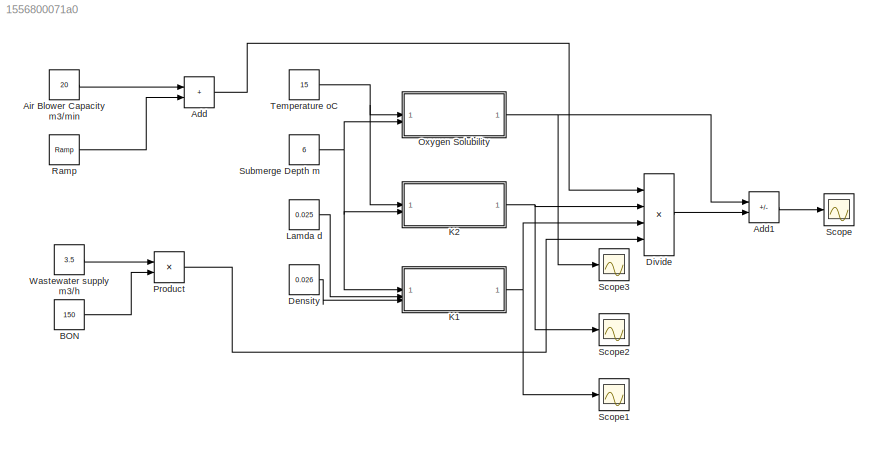
MODEL slx_1556800071a0
KIND model
CONFIG AbsTol = auto
CONFIG EnableMultiTasking = off
CONFIG FixedStep = auto
CONFIG MaxStep = auto
CONFIG MinStep = auto
CONFIG RelTol = 1e-3
CONFIG SampleTimeConstraint = Unconstrained
CONFIG SolverName = VariableStepAuto
CONFIG StartTime = 0.0
CONFIG StopTime = 100.0
BLOCK [Sum] Add
  IconShape = rectangular
BLOCK [Sum] Add1
  IconShape = rectangular
  Inputs = +-
BLOCK [Constant] Air Blower Capacity m3//min
  Value = 20
BLOCK [Constant] BON
  Value = 150
BLOCK [Constant] Density
  Value = 0.026
BLOCK [Product] Divide
  Inputs = //**
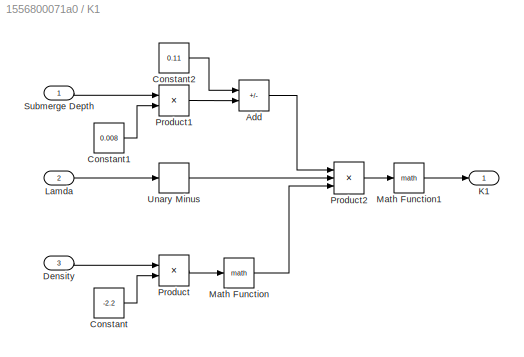
BLOCK [SubSystem] K1
BLOCK [Sum] K1/Add
  IconShape = rectangular
  Inputs = +-
BLOCK [Constant] K1/Constant
  Value = -2.2
BLOCK [Constant] K1/Constant1
  Value = 0.008
BLOCK [Constant] K1/Constant2
  Value = 0.11
BLOCK [Inport] K1/Density
  Port = 3
BLOCK [Outport] K1/K1
BLOCK [Inport] K1/Lamda
  Port = 2
BLOCK [Math] K1/Math Function
BLOCK [Math] K1/Math Function1
BLOCK [Product] K1/Product
BLOCK [Product] K1/Product1
BLOCK [Product] K1/Product2
  Inputs = 3
BLOCK [Inport] K1/Submerge Depth
BLOCK [UnaryMinus] K1/Unary Minus
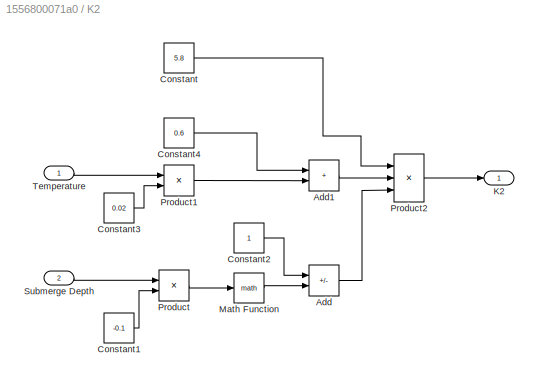
BLOCK [SubSystem] K2
BLOCK [Sum] K2/Add
  IconShape = rectangular
  Inputs = +-
BLOCK [Sum] K2/Add1
  IconShape = rectangular
BLOCK [Constant] K2/Constant
  Value = 5.8
BLOCK [Constant] K2/Constant1
  Value = -0.1
BLOCK [Constant] K2/Constant2
BLOCK [Constant] K2/Constant3
  Value = 0.02
BLOCK [Constant] K2/Constant4
  Value = 0.6
BLOCK [Outport] K2/K2
BLOCK [Math] K2/Math Function
BLOCK [Product] K2/Product
BLOCK [Product] K2/Product1
BLOCK [Product] K2/Product2
  Inputs = 3
BLOCK [Inport] K2/Submerge Depth
  Port = 2
BLOCK [Inport] K2/Temperature
BLOCK [Constant] Lamda d
  Value = 0.025
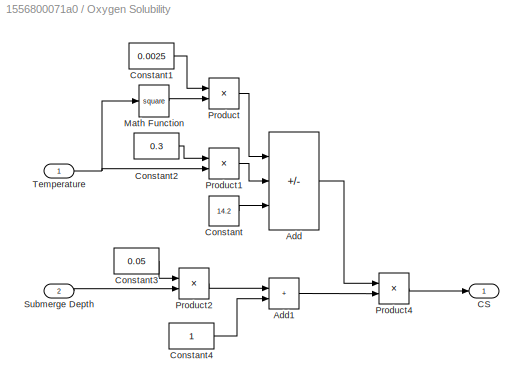
BLOCK [SubSystem] Oxygen Solubility
BLOCK [Sum] Oxygen Solubility/Add
  IconShape = rectangular
  Inputs = +-+
BLOCK [Sum] Oxygen Solubility/Add1
  IconShape = rectangular
BLOCK [Outport] Oxygen Solubility/CS
BLOCK [Constant] Oxygen Solubility/Constant
  Value = 14.2
BLOCK [Constant] Oxygen Solubility/Constant1
  Value = 0.0025
BLOCK [Constant] Oxygen Solubility/Constant2
  Value = 0.3
BLOCK [Constant] Oxygen Solubility/Constant3
  Value = 0.05
BLOCK [Constant] Oxygen Solubility/Constant4
BLOCK [Math] Oxygen Solubility/Math Function
  Operator = square
BLOCK [Product] Oxygen Solubility/Product
BLOCK [Product] Oxygen Solubility/Product1
BLOCK [Product] Oxygen Solubility/Product2
BLOCK [Product] Oxygen Solubility/Product4
BLOCK [Inport] Oxygen Solubility/Submerge Depth
  Port = 2
BLOCK [Inport] Oxygen Solubility/Temperature
BLOCK [Product] Product
BLOCK [Reference] Ramp  REF=simulink/Sources/Ramp
  SourceBlock = simulink/Sources/Ramp
  SourceType = Ramp
BLOCK [Scope] Scope
  Floating = off
  NumInputPorts = 1
  ScopeSpecificationString = Simulink.scopes.TimeScopeBlockCfg('CurrentConfiguration', extmgr.ConfigurationSet(extmgr.Configuration('Core','General UI',true),extmgr.Configuration('Core','Source UI',true),extmgr.Configuration('Sources','WiredSimulink',true),extmgr.Configuration('Visuals','Time Domain',true,'SerializedDisplays',{struct('MinYLimReal','0.94733','MaxYLimReal','13.59419','YLabelReal','','MinYLimMag','0.94733','MaxY...<+1484ch>
BLOCK [Scope] Scope1
  Floating = off
  NumInputPorts = 1
  ScopeSpecificationString = Simulink.scopes.TimeScopeBlockCfg('CurrentConfiguration', extmgr.ConfigurationSet(extmgr.Configuration('Core','General UI',true),extmgr.Configuration('Core','Source UI',true),extmgr.Configuration('Sources','WiredSimulink',true,'DataLoggingVariableName','ScopeData1'),extmgr.Configuration('Visuals','Time Domain',true,'SerializedDisplays',{struct('MinYLimReal','0.89854','MaxYLimReal','1.09854','YLabe...<+1526ch>
BLOCK [Scope] Scope2
  Floating = off
  NumInputPorts = 1
  ScopeSpecificationString = Simulink.scopes.TimeScopeBlockCfg('CurrentConfiguration', extmgr.ConfigurationSet(extmgr.Configuration('Core','General UI',true),extmgr.Configuration('Core','Source UI',true),extmgr.Configuration('Sources','WiredSimulink',true,'DataLoggingVariableName','ScopeData2'),extmgr.Configuration('Visuals','Time Domain',true,'SerializedDisplays',{struct('MinYLimReal','1.3552','MaxYLimReal','3.3552','YLabelR...<+1518ch>
BLOCK [Scope] Scope3
  Floating = off
  NumInputPorts = 1
  ScopeSpecificationString = Simulink.scopes.TimeScopeBlockCfg('CurrentConfiguration', extmgr.ConfigurationSet(extmgr.Configuration('Core','General UI',true),extmgr.Configuration('Core','Source UI',true),extmgr.Configuration('Sources','WiredSimulink',true,'DataLoggingVariableName','ScopeData3'),extmgr.Configuration('Visuals','Time Domain',true,'SerializedDisplays',{struct('MinYLimReal','3.34125','MaxYLimReal','23.34125','YLab...<+1545ch>
BLOCK [Constant] Submerge Depth m
  Value = 6
BLOCK [Constant] Temperature oC
  Value = 15
BLOCK [Constant] Wastewater supply m3//h
  Value = 3.5
LINE Add1:1 -> Scope:1
LINE Add:1 -> Divide:1
LINE Air Blower Capacity m3//min:1 -> Add:1
LINE BON:1 -> Product:2
LINE Density:1 -> K1:3
LINE Divide:1 -> Add1:2
LINE K1/Add:1 -> K1/Product2:1
LINE K1/Constant1:1 -> K1/Product1:2
LINE K1/Constant2:1 -> K1/Add:1
LINE K1/Constant:1 -> K1/Product:2
LINE K1/Density:1 -> K1/Product:1
LINE K1/Lamda:1 -> K1/Unary Minus:1
LINE K1/Math Function1:1 -> K1/K1:1
LINE K1/Math Function:1 -> K1/Product2:3
LINE K1/Product1:1 -> K1/Add:2
LINE K1/Product2:1 -> K1/Math Function1:1
LINE K1/Product:1 -> K1/Math Function:1
LINE K1/Submerge Depth:1 -> K1/Product1:1
LINE K1/Unary Minus:1 -> K1/Product2:2
NET K1:1 -> Divide:3, Scope1:1
LINE K2/Add1:1 -> K2/Product2:2
LINE K2/Add:1 -> K2/Product2:3
LINE K2/Constant1:1 -> K2/Product:2
LINE K2/Constant2:1 -> K2/Add:1
LINE K2/Constant3:1 -> K2/Product1:2
LINE K2/Constant4:1 -> K2/Add1:1
LINE K2/Constant:1 -> K2/Product2:1
LINE K2/Math Function:1 -> K2/Add:2
LINE K2/Product1:1 -> K2/Add1:2
LINE K2/Product2:1 -> K2/K2:1
LINE K2/Product:1 -> K2/Math Function:1
LINE K2/Submerge Depth:1 -> K2/Product:1
LINE K2/Temperature:1 -> K2/Product1:1
NET K2:1 -> Divide:2, Scope2:1
LINE Lamda d:1 -> K1:2
LINE Oxygen Solubility/Add1:1 -> Oxygen Solubility/Product4:2
LINE Oxygen Solubility/Add:1 -> Oxygen Solubility/Product4:1
LINE Oxygen Solubility/Constant1:1 -> Oxygen Solubility/Product:1
LINE Oxygen Solubility/Constant2:1 -> Oxygen Solubility/Product1:1
LINE Oxygen Solubility/Constant3:1 -> Oxygen Solubility/Product2:1
LINE Oxygen Solubility/Constant4:1 -> Oxygen Solubility/Add1:2
LINE Oxygen Solubility/Constant:1 -> Oxygen Solubility/Add:3
LINE Oxygen Solubility/Math Function:1 -> Oxygen Solubility/Product:2
LINE Oxygen Solubility/Product1:1 -> Oxygen Solubility/Add:2
LINE Oxygen Solubility/Product2:1 -> Oxygen Solubility/Add1:1
LINE Oxygen Solubility/Product4:1 -> Oxygen Solubility/CS:1
LINE Oxygen Solubility/Product:1 -> Oxygen Solubility/Add:1
LINE Oxygen Solubility/Submerge Depth:1 -> Oxygen Solubility/Product2:2
NET Oxygen Solubility/Temperature:1 -> Oxygen Solubility/Math Function:1, Oxygen Solubility/Product1:2
NET Oxygen Solubility:1 -> Add1:1, Scope3:1
LINE Product:1 -> Divide:4
LINE Ramp:1 -> Add:2
NET Submerge Depth m:1 -> K1:1, K2:2, Oxygen Solubility:2
NET Temperature oC:1 -> K2:1, Oxygen Solubility:1
LINE Wastewater supply m3//h:1 -> Product:1
note: NET lines group one-source signal fan-out (src -> all destinations, sorted); 1:1 wires keep LINE
